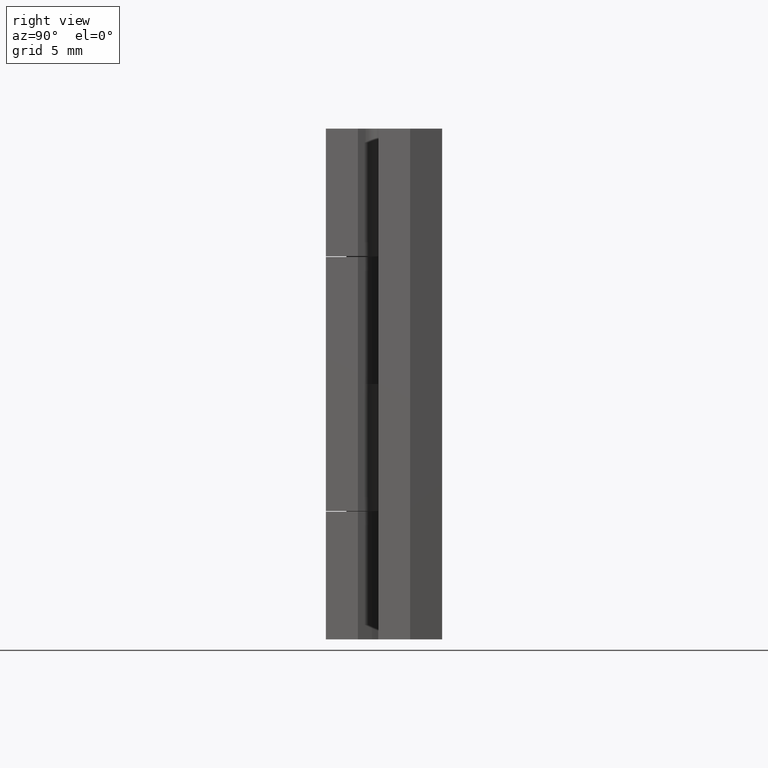
[diagram: clean part render]
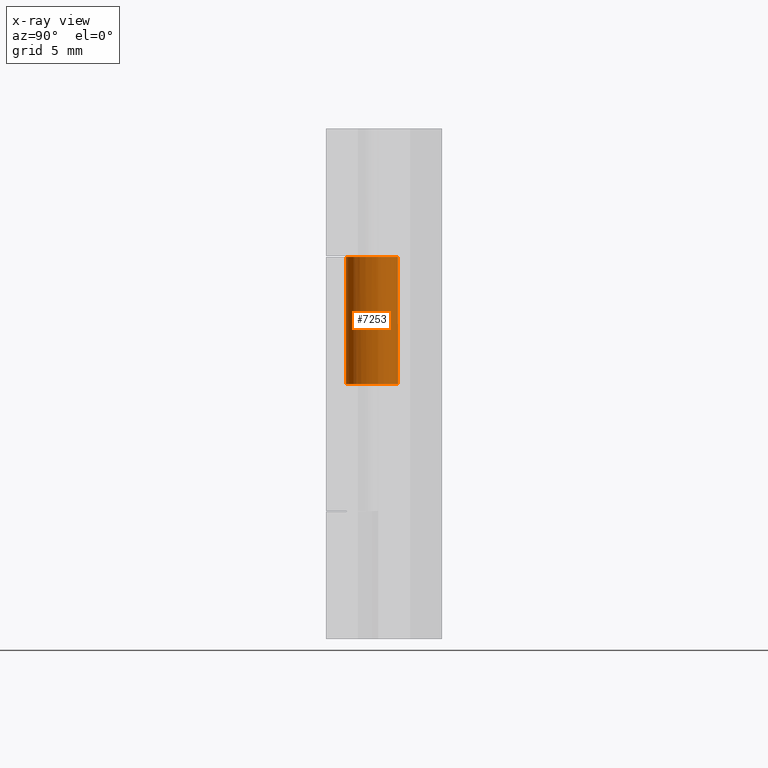
[diagram: x-ray — body ghosted, one internal face saturated and labeled with its STEP entity id]
A machine part, right view, then the same camera in x-ray: the body is ghosted and one INTERNAL B-rep face — a face not visible from any outside direction — is saturated and labeled: STEP entity #7253.
In plain terms, the highlighted face is a freeform B-spline surface patch.
Its self-contained STEP definition (entity closure, byte-faithful):
#7086=CARTESIAN_POINT('',(0.254463010083659,2.034145834956612,20.000000949949250));
#7087=VERTEX_POINT('',#7086);
#7103=CARTESIAN_POINT('',(-0.017888805048055,-2.049922039646397,20.000000949949250));
#7104=VERTEX_POINT('',#7103);
#7120=CARTESIAN_POINT('',(-0.017888805033188,-2.049922039646527,29.950001422548549));
#7121=VERTEX_POINT('',#7120);
#7122=CARTESIAN_POINT('',(-0.017888805033188,-2.049922039646527,29.950001422548549));
#7123=CARTESIAN_POINT('',(-0.017888805048055,-2.049922039646397,20.000000949949250));
#7124=QUASI_UNIFORM_CURVE('',1,(#7122,#7123),.UNSPECIFIED.,.F.,.U.);
#7125=EDGE_CURVE('',#7121,#7104,#7124,.T.);
#7144=CARTESIAN_POINT('',(0.254463010131278,2.034145834950655,29.950001422548549));
#7145=VERTEX_POINT('',#7144);
#7159=CARTESIAN_POINT('',(0.254463010131278,2.034145834950655,29.950001422548549));
#7160=CARTESIAN_POINT('',(0.254463010083659,2.034145834956612,20.000000949949250));
#7161=QUASI_UNIFORM_CURVE('',1,(#7159,#7160),.UNSPECIFIED.,.F.,.U.);
#7162=EDGE_CURVE('',#7145,#7087,#7161,.T.);
#7167=CARTESIAN_POINT('',(-0.017888804907546,-2.049922039647623,30.198751434363540));
#7168=CARTESIAN_POINT('',(-2.067810844555169,-2.032032641026256,30.198751434363540));
#7169=CARTESIAN_POINT('',(-2.049921445933802,0.017889398621367,30.198751434363540));
#7170=CARTESIAN_POINT('',(-2.032032047312435,2.067811438268990,30.198751434363540));
#7171=CARTESIAN_POINT('',(0.017889992335189,2.049922039647623,30.198751434363540));
#7172=CARTESIAN_POINT('',(0.136633426067788,2.048885781400418,30.198751434363537));
#7173=CARTESIAN_POINT('',(0.254463010063788,2.034145834959097,30.198751434363544));
#7174=CARTESIAN_POINT('',(-0.017888804907546,-2.049922039647623,19.745032187838891));
#7175=CARTESIAN_POINT('',(-2.067810844555169,-2.032032641026256,19.745032187838888));
#7176=CARTESIAN_POINT('',(-2.049921445933802,0.017889398621367,19.745032187838891));
#7177=CARTESIAN_POINT('',(-2.032032047312435,2.067811438268990,19.745032187838888));
#7178=CARTESIAN_POINT('',(0.017889992335189,2.049922039647623,19.745032187838891));
#7179=CARTESIAN_POINT('',(0.136633426067788,2.048885781400418,19.745032187838888));
#7180=CARTESIAN_POINT('',(0.254463010063788,2.034145834959097,19.745032187838895));
#7188=(BOUNDED_SURFACE()B_SPLINE_SURFACE(2,1,((#7167,#7174),(#7168,#7175),(#7169,#7176),(#7170,#7177),(#7171,#7178),(#7172,#7179),(#7173,#7180)),.UNSPECIFIED.,.F.,.F.,.U.)B_SPLINE_SURFACE_WITH_KNOTS((3,2,2,3),(2,2),(0.0,3.396551372786913,6.793102745573825,7.064826855396778),(0.0,10.453719246524649),.UNSPECIFIED.)GEOMETRIC_REPRESENTATION_ITEM()RATIONAL_B_SPLINE_SURFACE(((1.0,1.0),(0.707106781186548,0.707106781186548),(1.0,1.0),(0.707106781186548,0.707106781186548),(1.0,1.0),(0.976568542494924,0.976568542494924),(0.956886118190660,0.956886118190660)))REPRESENTATION_ITEM('')SURFACE());
#7189=CARTESIAN_POINT('',(-2.049999503655959,0.0,20.000000949949250));
#7190=VERTEX_POINT('',#7189);
#7191=CARTESIAN_POINT('',(-2.049999503655959,0.0,20.000000949949250));
#7192=CARTESIAN_POINT('',(-2.049999503655959,2.050000097369780,20.000000949949243));
#7193=CARTESIAN_POINT('',(0.000000593713821,2.050000097369780,20.000000949949250));
#7194=CARTESIAN_POINT('',(0.127725701244201,2.050000097369780,20.000000949949250));
#7195=CARTESIAN_POINT('',(0.254463010083659,2.034145834956612,20.000000949949250));
#7203=(BOUNDED_CURVE()B_SPLINE_CURVE(2,(#7191,#7192,#7193,#7194,#7195),.UNSPECIFIED.,.F.,.U.)B_SPLINE_CURVE_WITH_KNOTS((3,2,3),(0.500000000000000,0.750000000000000,0.771473928973995),.UNSPECIFIED.)CURVE()GEOMETRIC_REPRESENTATION_ITEM()RATIONAL_B_SPLINE_CURVE((1.0,0.707106781186547,1.0,0.974841727288940,0.954005430268326))REPRESENTATION_ITEM(''));
#7204=EDGE_CURVE('',#7190,#7087,#7203,.T.);
#7205=ORIENTED_EDGE('',*,*,#7204,.T.);
#7206=ORIENTED_EDGE('',*,*,#7162,.F.);
#7207=CARTESIAN_POINT('',(-2.049999503655959,0.0,29.950001422548549));
#7208=VERTEX_POINT('',#7207);
#7209=CARTESIAN_POINT('',(0.254463010131278,2.034145834950655,29.950001422548556));
#7210=CARTESIAN_POINT('',(0.127725701292382,2.050000097369780,29.950001422548542));
#7211=CARTESIAN_POINT('',(0.000000593713821,2.050000097369780,29.950001422548549));
#7212=CARTESIAN_POINT('',(-2.049999503655959,2.050000097369780,29.950001422548546));
#7213=CARTESIAN_POINT('',(-2.049999503655959,0.0,29.950001422548549));
#7221=(BOUNDED_CURVE()B_SPLINE_CURVE(2,(#7209,#7210,#7211,#7212,#7213),.UNSPECIFIED.,.F.,.U.)B_SPLINE_CURVE_WITH_KNOTS((3,2,3),(0.728526071018108,0.750000000000000,1.0),.UNSPECIFIED.)CURVE()GEOMETRIC_REPRESENTATION_ITEM()RATIONAL_B_SPLINE_CURVE((0.954005430253001,0.974841727279689,1.0,0.707106781186547,1.0))REPRESENTATION_ITEM(''));
#7222=EDGE_CURVE('',#7145,#7208,#7221,.T.);
#7223=ORIENTED_EDGE('',*,*,#7222,.T.);
#7224=CARTESIAN_POINT('',(-2.049999503655959,0.0,29.950001422548549));
#7225=CARTESIAN_POINT('',(-2.049999503655960,-2.032188077994341,29.950001422548556));
#7226=CARTESIAN_POINT('',(-0.017888805033188,-2.049922039646526,29.950001422548549));
#7234=(BOUNDED_CURVE()B_SPLINE_CURVE(2,(#7224,#7225,#7226),.UNSPECIFIED.,.F.,.U.)B_SPLINE_CURVE_WITH_KNOTS((3,3),(0.0,0.248460105643421),.UNSPECIFIED.)CURVE()GEOMETRIC_REPRESENTATION_ITEM()RATIONAL_B_SPLINE_CURVE((1.0,0.708910879645472,0.996414028050436))REPRESENTATION_ITEM(''));
#7235=EDGE_CURVE('',#7208,#7121,#7234,.T.);
#7236=ORIENTED_EDGE('',*,*,#7235,.T.);
#7237=ORIENTED_EDGE('',*,*,#7125,.T.);
#7238=CARTESIAN_POINT('',(-0.017888805048055,-2.049922039646397,20.000000949949246));
#7239=CARTESIAN_POINT('',(-2.049999503655959,-2.032188077964863,20.000000949949246));
#7240=CARTESIAN_POINT('',(-2.049999503655959,0.0,20.000000949949250));
#7248=(BOUNDED_CURVE()B_SPLINE_CURVE(2,(#7238,#7239,#7240),.UNSPECIFIED.,.F.,.U.)B_SPLINE_CURVE_WITH_KNOTS((3,3),(0.251539894359134,0.500000000000000),.UNSPECIFIED.)CURVE()GEOMETRIC_REPRESENTATION_ITEM()RATIONAL_B_SPLINE_CURVE((0.996414028044523,0.708910879648465,1.0))REPRESENTATION_ITEM(''));
#7249=EDGE_CURVE('',#7104,#7190,#7248,.T.);
#7250=ORIENTED_EDGE('',*,*,#7249,.T.);
#7251=EDGE_LOOP('',(#7205,#7206,#7223,#7236,#7237,#7250));
#7252=FACE_OUTER_BOUND('',#7251,.T.);
#7253=ADVANCED_FACE('',(#7252),#7188,.F.);